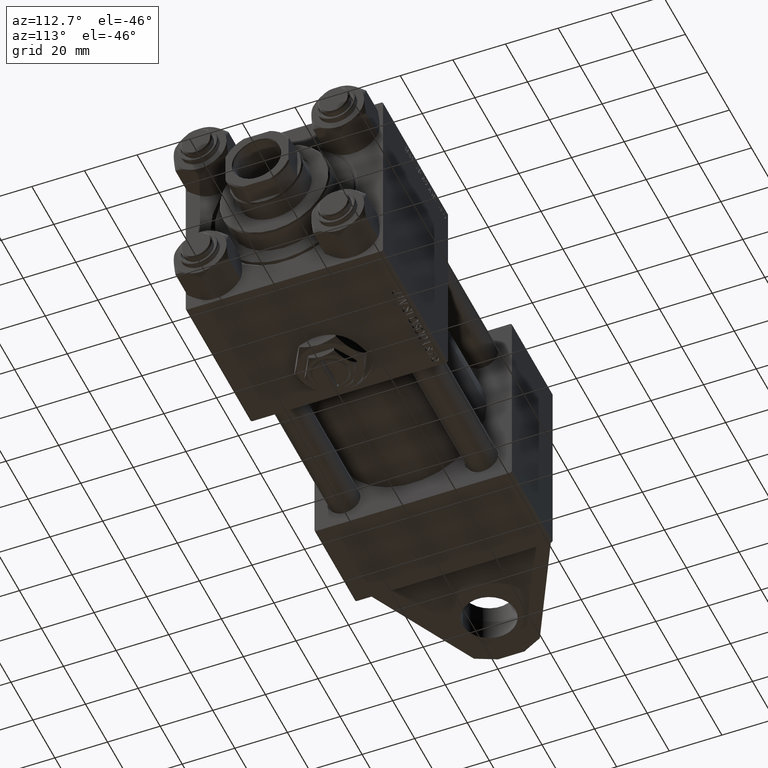
[diagram: clean part render]
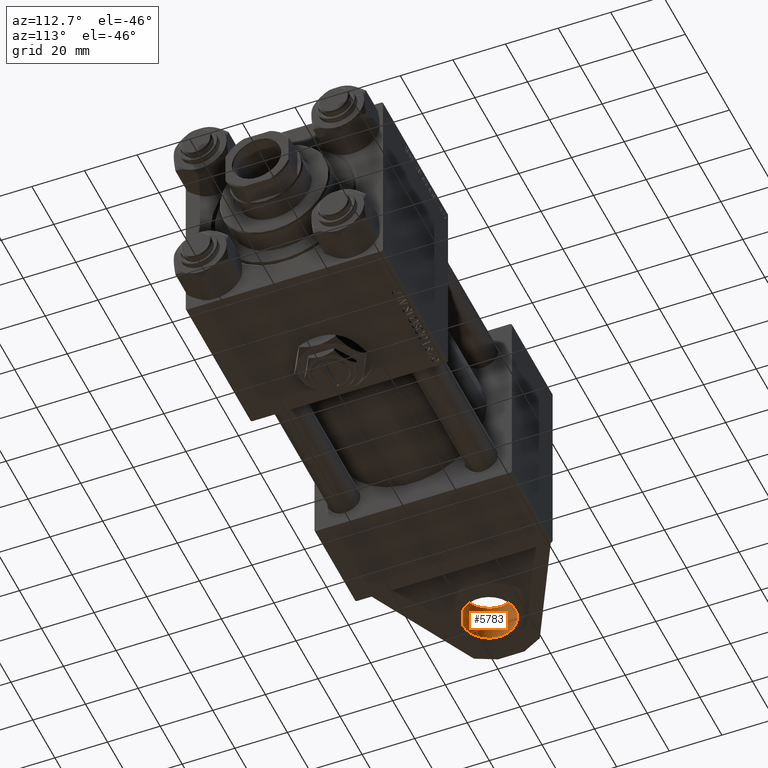
[diagram: same view with one face highlighted and labeled with its STEP entity id]
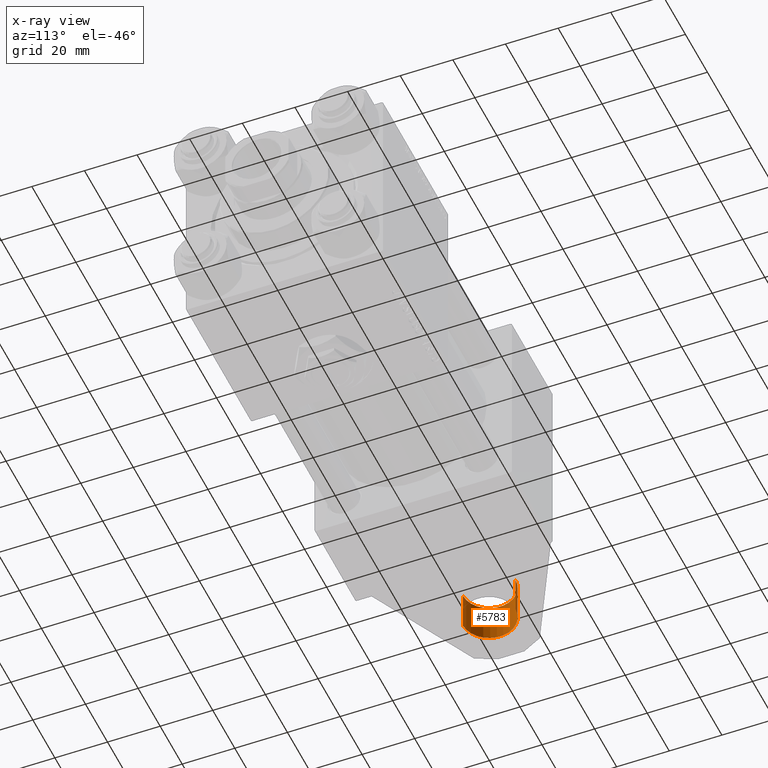
[diagram: x-ray of the same camera — body ghosted, the highlighted face saturated]
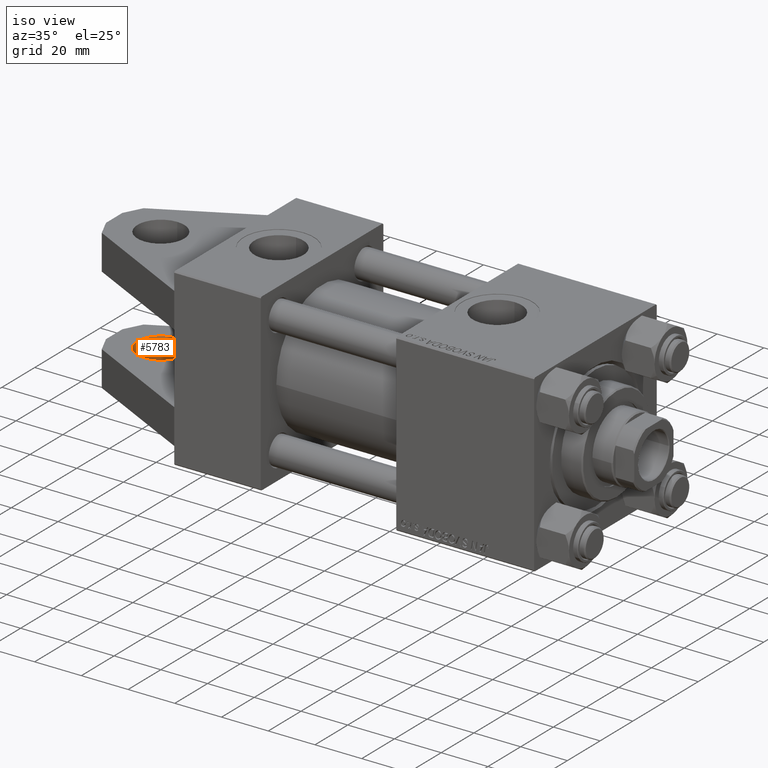
[diagram: same view with one face highlighted and labeled with its STEP entity id]
A machine part, auxiliary view. The second image highlights one B-rep face of the part: STEP entity #5783.
The next image is the same camera in x-ray: the body ghosted, the highlighted face saturated — about 0% of this face is hidden behind the body in this view.
A second angle (iso view) of the same face is appended — the face is thin or edge-on in the first view.
In plain terms, the highlighted cylindrical surface (edge-blend (fillet) strip) has radius 10 mm, axis along (-0, -0, 1).
Its self-contained STEP definition (entity closure, byte-faithful):
#1369 = DIRECTION ( 'NONE',  ( 0.000000000000000000, 0.000000000000000000, 1.000000000000000000 ) ) ;
#2434 = CARTESIAN_POINT ( 'NONE',  ( -32.00000000000000000, 30.00000000000000000, 9.999999999999992895 ) ) ;
#3115 = VERTEX_POINT ( 'NONE', #33769 ) ;
#3148 = FACE_OUTER_BOUND ( 'NONE', #38854, .T. ) ;
#3542 = EDGE_CURVE ( 'NONE', #10377, #3115, #30004, .T. ) ;
#5026 = EDGE_CURVE ( 'NONE', #41251, #10377, #34555, .T. ) ;
#5247 = DIRECTION ( 'NONE',  ( -0.000000000000000000, -1.000000000000000000, -0.000000000000000000 ) ) ;
#5783 = ADVANCED_FACE ( 'NONE', ( #3148 ), #50691, .F. ) ;
#7418 = ORIENTED_EDGE ( 'NONE', *, *, #3542, .T. ) ;
#7428 = AXIS2_PLACEMENT_3D ( 'NONE', #41139, #36994, #1369 ) ;
#8578 = ORIENTED_EDGE ( 'NONE', *, *, #48594, .F. ) ;
#9153 = LINE ( 'NONE', #16951, #35649 ) ;
#9472 = DIRECTION ( 'NONE',  ( -0.000000000000000000, -1.000000000000000000, -0.000000000000000000 ) ) ;
#10141 = CARTESIAN_POINT ( 'NONE',  ( -32.00000000000000000, 30.00000000000000000, -6.938893903907228378E-15 ) ) ;
#10377 = VERTEX_POINT ( 'NONE', #11641 ) ;
#11207 = CARTESIAN_POINT ( 'NONE',  ( -32.00000000000000000, 30.00000000000000000, -6.938893903907228378E-15 ) ) ;
#11641 = CARTESIAN_POINT ( 'NONE',  ( -32.00000000000000000, 30.00000000000000000, 9.999999999999992895 ) ) ;
#16951 = CARTESIAN_POINT ( 'NONE',  ( -32.00000000000000000, 30.00000000000000000, -10.00000000000000711 ) ) ;
#17960 = CARTESIAN_POINT ( 'NONE',  ( -32.00000000000000000, 15.00000000000000000, -10.00000000000000711 ) ) ;
#18443 = DIRECTION ( 'NONE',  ( 0.000000000000000000, 1.000000000000000000, 0.000000000000000000 ) ) ;
#24133 = CARTESIAN_POINT ( 'NONE',  ( -32.00000000000000000, 30.00000000000000000, -10.00000000000000711 ) ) ;
#25277 = EDGE_CURVE ( 'NONE', #41251, #36596, #9153, .T. ) ;
#27579 = ORIENTED_EDGE ( 'NONE', *, *, #25277, .F. ) ;
#30004 = LINE ( 'NONE', #2434, #32037 ) ;
#31678 = ORIENTED_EDGE ( 'NONE', *, *, #5026, .T. ) ;
#32037 = VECTOR ( 'NONE', #9472, 1000.000000000000000 ) ;
#33769 = CARTESIAN_POINT ( 'NONE',  ( -32.00000000000000000, 15.00000000000000000, 9.999999999999992895 ) ) ;
#34555 = CIRCLE ( 'NONE', #46991, 10.00000000000000000 ) ;
#35649 = VECTOR ( 'NONE', #5247, 1000.000000000000000 ) ;
#36596 = VERTEX_POINT ( 'NONE', #17960 ) ;
#36994 = DIRECTION ( 'NONE',  ( 0.000000000000000000, 1.000000000000000000, 0.000000000000000000 ) ) ;
#38704 = DIRECTION ( 'NONE',  ( 0.000000000000000000, 0.000000000000000000, 1.000000000000000000 ) ) ;
#38854 = EDGE_LOOP ( 'NONE', ( #31678, #7418, #8578, #27579 ) ) ;
#41139 = CARTESIAN_POINT ( 'NONE',  ( -32.00000000000000000, 15.00000000000000000, -6.938893903907228378E-15 ) ) ;
#41251 = VERTEX_POINT ( 'NONE', #24133 ) ;
#42904 = DIRECTION ( 'NONE',  ( -0.000000000000000000, -1.000000000000000000, -0.000000000000000000 ) ) ;
#46991 = AXIS2_PLACEMENT_3D ( 'NONE', #10141, #18443, #38704 ) ;
#47834 = AXIS2_PLACEMENT_3D ( 'NONE', #11207, #42904, #49678 ) ;
#48594 = EDGE_CURVE ( 'NONE', #36596, #3115, #49753, .T. ) ;
#49678 = DIRECTION ( 'NONE',  ( 0.000000000000000000, 0.000000000000000000, -1.000000000000000000 ) ) ;
#49753 = CIRCLE ( 'NONE', #7428, 10.00000000000000000 ) ;
#50691 = CYLINDRICAL_SURFACE ( 'NONE', #47834, 10.00000000000000000 ) ;